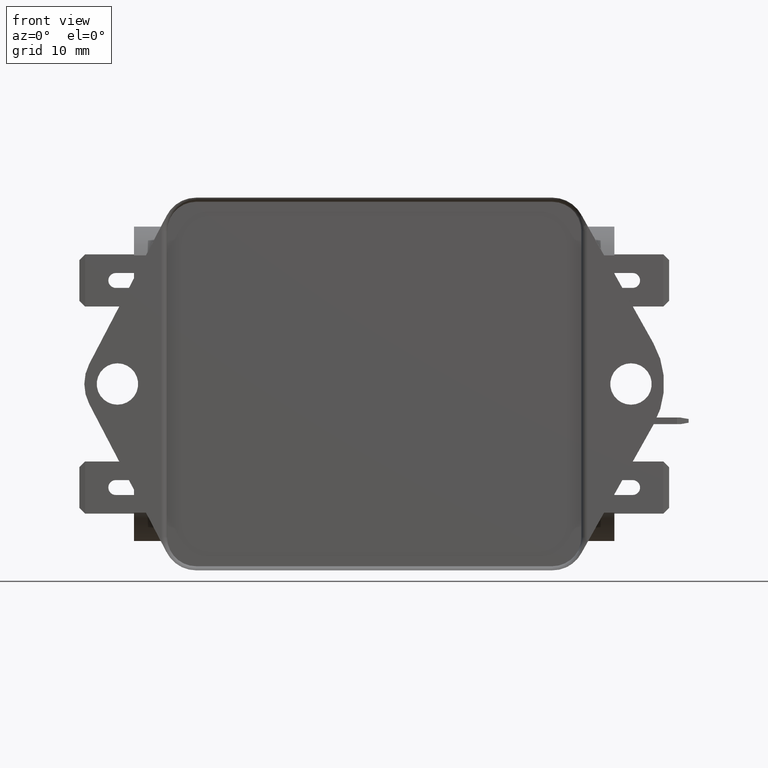
[diagram: clean part render]
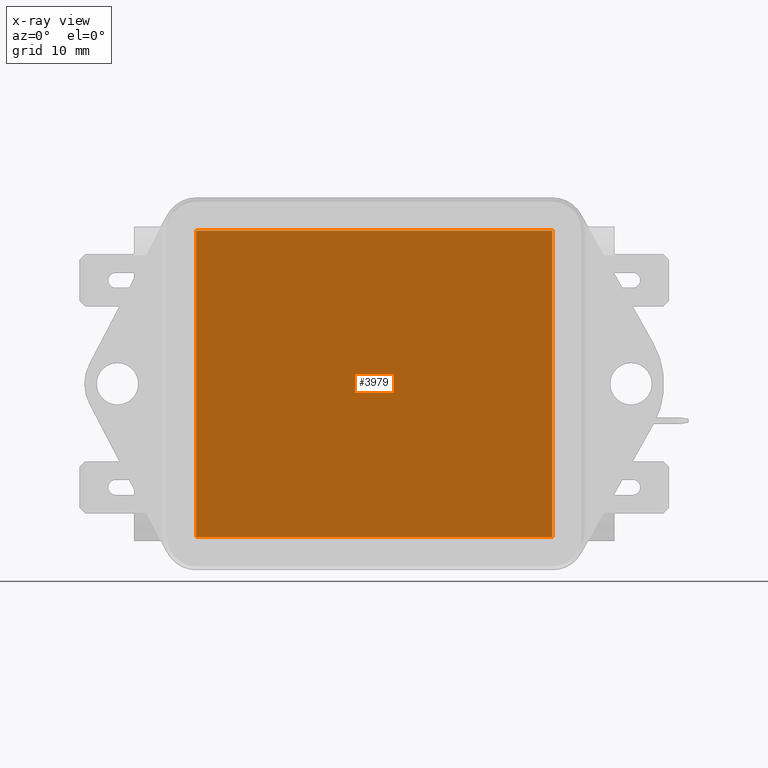
[diagram: x-ray — body ghosted, one internal face saturated and labeled with its STEP entity id]
A machine part, front view, then the same camera in x-ray: the body is ghosted and one INTERNAL B-rep face — a face not visible from any outside direction — is saturated and labeled: STEP entity #3979.
In plain terms, the highlighted planar face has unit normal (0, 1, 0).
Its self-contained STEP definition (entity closure, byte-faithful):
#3979=ADVANCED_FACE('',(#7527),#7528,.T.);
#7527=FACE_OUTER_BOUND('',#12641,.T.);
#7528=PLANE('',#12642);
#12641=EDGE_LOOP('',(#17013,#17014,#17015,#17016));
#12642=AXIS2_PLACEMENT_3D('',#17017,#17018,#17019);
#17013=ORIENTED_EDGE('',*,*,#17503,.T.);
#17014=ORIENTED_EDGE('',*,*,#17504,.T.);
#17015=ORIENTED_EDGE('',*,*,#17505,.T.);
#17016=ORIENTED_EDGE('',*,*,#17506,.T.);
#17017=CARTESIAN_POINT('',(21.5,41.5826116241457,2.29074584047833));
#17018=DIRECTION('',(-0.0,1.0,0.0));
#17019=DIRECTION('',(1.0,0.0,0.0));
#17503=EDGE_CURVE('',#17899,#17900,#17901,.T.);
#17504=EDGE_CURVE('',#17900,#17902,#17903,.T.);
#17505=EDGE_CURVE('',#17902,#17904,#17905,.T.);
#17506=EDGE_CURVE('',#17904,#17899,#17906,.T.);
#17899=VERTEX_POINT('',#18315);
#17900=VERTEX_POINT('',#18316);
#17901=LINE('',#18317,#18318);
#17902=VERTEX_POINT('',#18319);
#17903=LINE('',#18320,#18321);
#17904=VERTEX_POINT('',#18322);
#17905=LINE('',#18323,#18324);
#17906=LINE('',#18325,#18326);
#18315=CARTESIAN_POINT('',(-21.5,41.5826116241457,-34.7092541595217));
#18316=CARTESIAN_POINT('',(-21.5,41.5826116241457,2.29074584047831));
#18317=CARTESIAN_POINT('',(-21.5,41.5826116241457,2.29074584047835));
#18318=VECTOR('',#18408,1.0);
#18319=CARTESIAN_POINT('',(21.5,41.5826116241457,2.29074584047833));
#18320=CARTESIAN_POINT('',(21.5,41.5826116241457,2.29074584047833));
#18321=VECTOR('',#18409,1.0);
#18322=CARTESIAN_POINT('',(21.5,41.5826116241457,-34.7092541595217));
#18323=CARTESIAN_POINT('',(21.5,41.5826116241457,-34.7092541595217));
#18324=VECTOR('',#18410,1.0);
#18325=CARTESIAN_POINT('',(-21.5,41.5826116241457,-34.7092541595217));
#18326=VECTOR('',#18411,1.0);
#18408=DIRECTION('',(1.87537673078574E-016,0.0,1.0));
#18409=DIRECTION('',(1.0,0.0,-1.61369625672261E-016));
#18410=DIRECTION('',(-1.87537673078574E-016,0.0,-1.0));
#18411=DIRECTION('',(-1.0,0.0,1.61369625672261E-016));